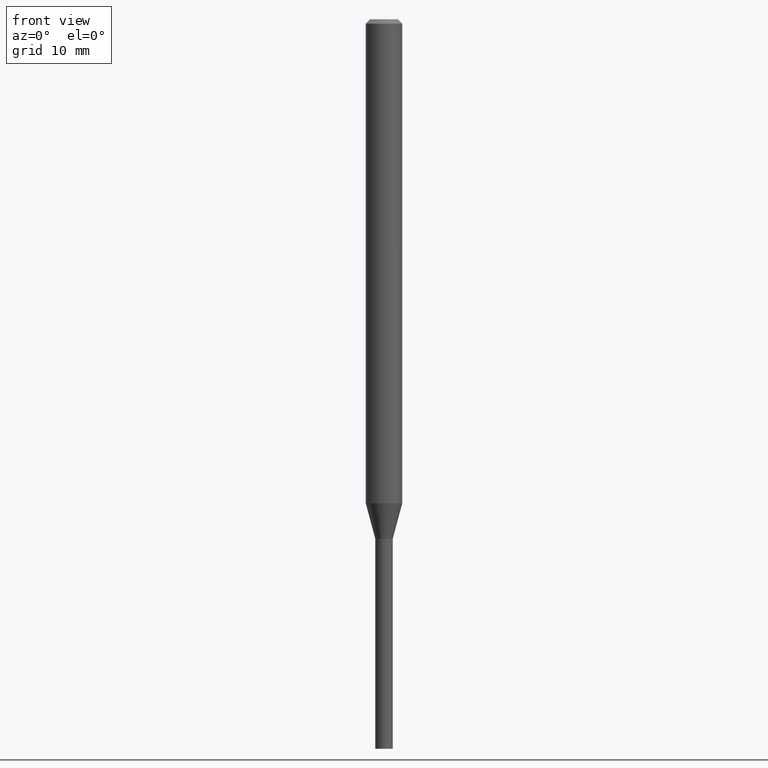
[diagram: clean part render]
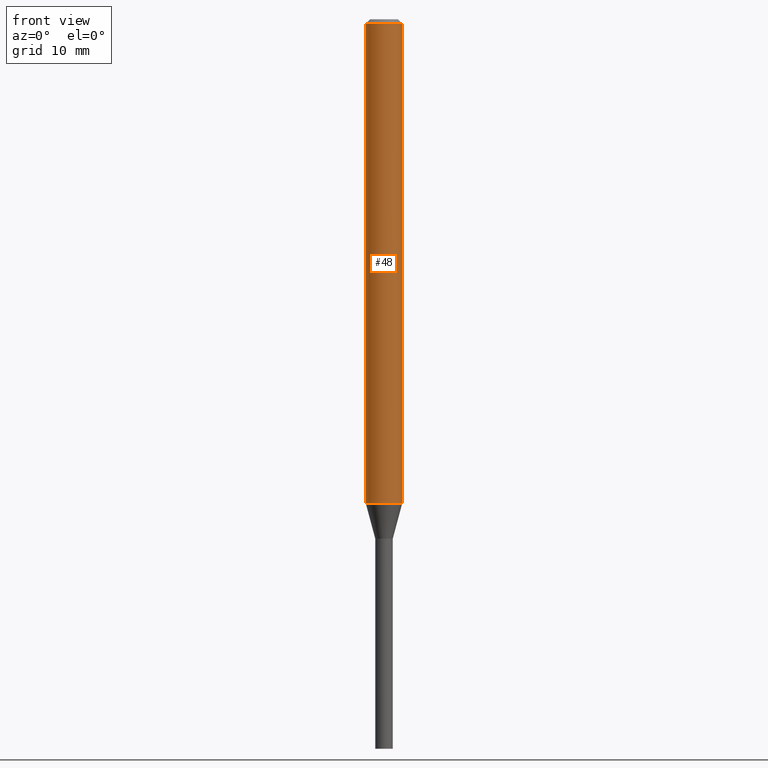
[diagram: same view with one face highlighted and labeled with its STEP entity id]
A machine part, front view. The second image highlights one B-rep face of the part: STEP entity #48.
In plain terms, the highlighted cylindrical surface (edge-blend (fillet) strip) has radius 1.5875 mm, axis along (-0, 0, 1).
Its self-contained STEP definition (entity closure, byte-faithful):
#6 = DIRECTION ( 'NONE',  ( -2.445468806185136597E-29, 3.491481338843145583E-15, 1.000000000000000000 ) ) ;
#18 = EDGE_CURVE ( 'NONE', #71, #222, #104, .T. ) ;
#48 = ADVANCED_FACE ( 'NONE', ( #253 ), #431, .T. ) ;
#53 = EDGE_CURVE ( 'NONE', #189, #424, #308, .T. ) ;
#69 = AXIS2_PLACEMENT_3D ( 'NONE', #359, #6, #180 ) ;
#71 = VERTEX_POINT ( 'NONE', #260 ) ;
#81 = CARTESIAN_POINT ( 'NONE',  ( 0.000000000000000000, 0.000000000000000000, 0.000000000000000000 ) ) ;
#83 = DIRECTION ( 'NONE',  ( -2.445468806185136597E-29, 3.491481338843145583E-15, 1.000000000000000000 ) ) ;
#92 = VECTOR ( 'NONE', #160, 39.37007874015748143 ) ;
#93 = CARTESIAN_POINT ( 'NONE',  ( -0.06250000000000000000, 4.440892098500626162E-16, -3.074334431409316114E-30 ) ) ;
#94 = LINE ( 'NONE', #93, #92 ) ;
#104 = CIRCLE ( 'NONE', #69, 0.06250000000000000000 ) ;
#155 = DIRECTION ( 'NONE',  ( 1.000000000000000000, -6.982962677686266711E-15, 4.876176775795935793E-29 ) ) ;
#160 = DIRECTION ( 'NONE',  ( -2.445468806185136877E-29, 3.491481338843145188E-15, 1.000000000000000000 ) ) ;
#166 = EDGE_CURVE ( 'NONE', #189, #71, #94, .T. ) ;
#180 = DIRECTION ( 'NONE',  ( 1.000000000000000000, -6.982962677686266711E-15, 0.000000000000000000 ) ) ;
#189 = VERTEX_POINT ( 'NONE', #231 ) ;
#209 = EDGE_CURVE ( 'NONE', #424, #222, #374, .T. ) ;
#222 = VERTEX_POINT ( 'NONE', #444 ) ;
#231 = CARTESIAN_POINT ( 'NONE',  ( -0.06250000000000000000, -5.347260036407896657E-15, -1.658708348754011741 ) ) ;
#233 = DIRECTION ( 'NONE',  ( -2.445468806185136877E-29, 3.491481338843145188E-15, 1.000000000000000000 ) ) ;
#241 = ORIENTED_EDGE ( 'NONE', *, *, #166, .F. ) ;
#248 = ORIENTED_EDGE ( 'NONE', *, *, #209, .T. ) ;
#253 = FACE_OUTER_BOUND ( 'NONE', #350, .T. ) ;
#260 = CARTESIAN_POINT ( 'NONE',  ( -0.06250000000000000000, -2.477771523320241152E-15, -0.01499999999999999944 ) ) ;
#272 = VECTOR ( 'NONE', #233, 39.37007874015748143 ) ;
#308 = CIRCLE ( 'NONE', #391, 0.06250000000000000000 ) ;
#315 = ORIENTED_EDGE ( 'NONE', *, *, #53, .T. ) ;
#326 = AXIS2_PLACEMENT_3D ( 'NONE', #81, #361, #155 ) ;
#345 = ORIENTED_EDGE ( 'NONE', *, *, #18, .F. ) ;
#350 = EDGE_LOOP ( 'NONE', ( #241, #315, #248, #345 ) ) ;
#359 = CARTESIAN_POINT ( 'NONE',  ( 3.668203209277705088E-31, -5.237222008264718399E-17, -0.01499999999999999944 ) ) ;
#361 = DIRECTION ( 'NONE',  ( -2.445468806185136597E-29, 3.491481338843145583E-15, 1.000000000000000000 ) ) ;
#374 = LINE ( 'NONE', #407, #272 ) ;
#391 = AXIS2_PLACEMENT_3D ( 'NONE', #396, #83, #398 ) ;
#396 = CARTESIAN_POINT ( 'NONE',  ( 4.056319525436792894E-29, -5.791349246257960062E-15, -1.658708348754011741 ) ) ;
#398 = DIRECTION ( 'NONE',  ( 1.000000000000000000, -6.982962677686262766E-15, 0.000000000000000000 ) ) ;
#407 = CARTESIAN_POINT ( 'NONE',  ( 0.06250000000000000000, -4.364351673553916694E-16, 3.047610484872459871E-30 ) ) ;
#416 = CARTESIAN_POINT ( 'NONE',  ( 0.06250000000000000000, -6.227784413613351732E-15, -1.658708348754011741 ) ) ;
#424 = VERTEX_POINT ( 'NONE', #416 ) ;
#431 = CYLINDRICAL_SURFACE ( 'NONE', #326, 0.06250000000000000000 ) ;
#444 = CARTESIAN_POINT ( 'NONE',  ( 0.06250000000000000000, -4.888073874380388472E-16, -0.01499999999999999944 ) ) ;